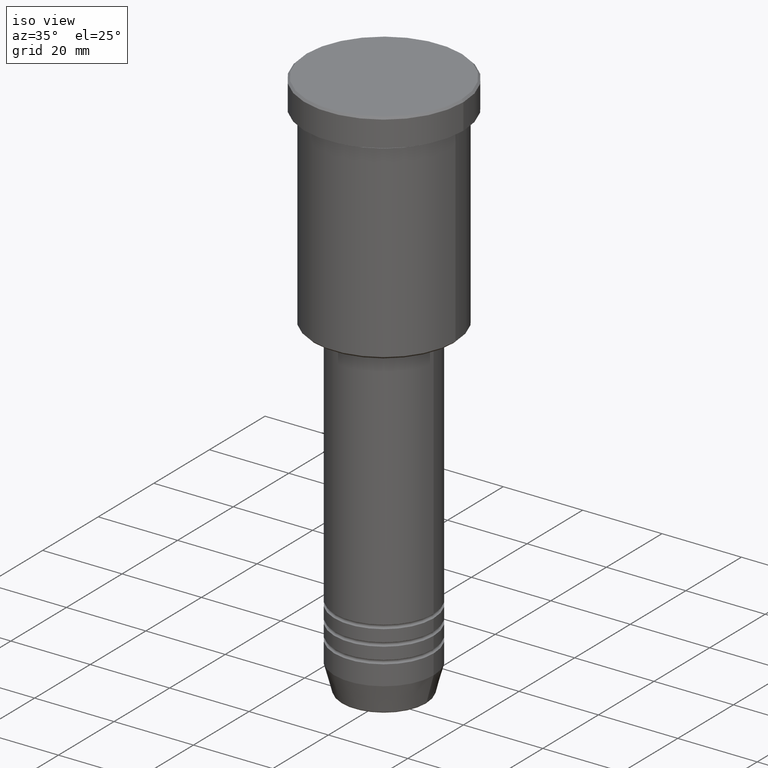
[diagram: clean part render]
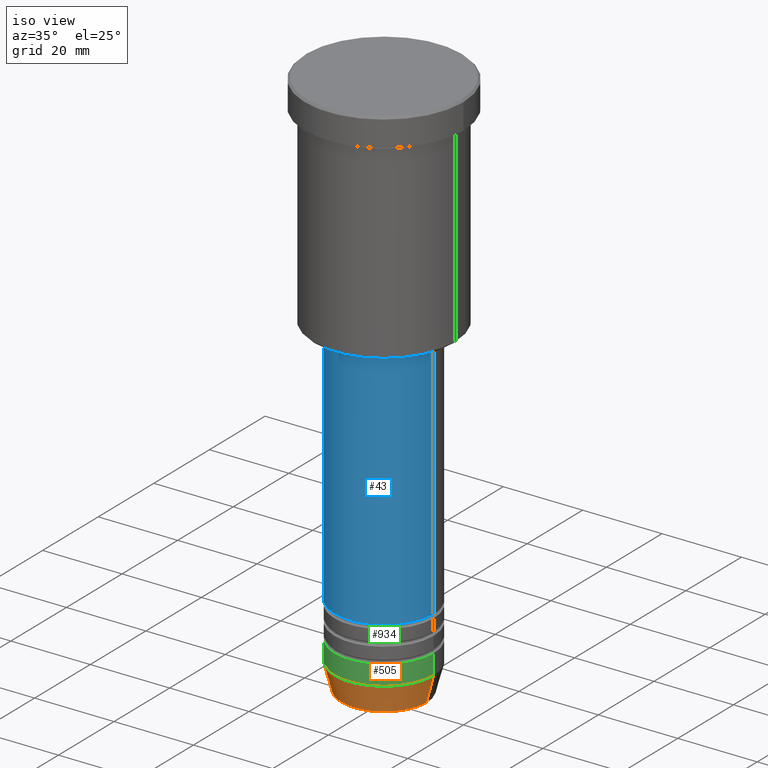
[diagram: same view with three faces highlighted in distinct colors, each labeled with its STEP entity id]
A machine part, iso view with three faces highlighted in distinct colors.
Their STEP definitions:

[orange] entity #505 — the highlighted conical surface has half-angle 15 deg.
#2 = DIRECTION ( 'NONE',  ( -0.000000000000000000, -0.000000000000000000, 1.000000000000000000 ) ) ;
#21 = EDGE_CURVE ( 'NONE', #1040, #383, #338, .T. ) ;
#80 = AXIS2_PLACEMENT_3D ( 'NONE', #639, #2, #745 ) ;
#99 = AXIS2_PLACEMENT_3D ( 'NONE', #422, #1058, #236 ) ;
#112 = LINE ( 'NONE', #425, #375 ) ;
#118 = CONICAL_SURFACE ( 'NONE', #435, 12.50000000000000000, 0.2617993877991500740 ) ;
#192 = EDGE_CURVE ( 'NONE', #383, #661, #434, .T. ) ;
#196 = CARTESIAN_POINT ( 'NONE',  ( -12.50000000000000000, 1.530808498934191521E-15, -133.0000000000000000 ) ) ;
#221 = DIRECTION ( 'NONE',  ( 0.2588190451025213501, 0.000000000000000000, 0.9659258262890680902 ) ) ;
#231 = FACE_OUTER_BOUND ( 'NONE', #728, .T. ) ;
#235 = VERTEX_POINT ( 'NONE', #1006 ) ;
#236 = DIRECTION ( 'NONE',  ( 1.000000000000000000, 0.000000000000000000, 0.000000000000000000 ) ) ;
#250 = CARTESIAN_POINT ( 'NONE',  ( -12.50000000000000000, 1.530808498934191521E-15, -133.0000000000000000 ) ) ;
#277 = ORIENTED_EDGE ( 'NONE', *, *, #192, .F. ) ;
#338 = LINE ( 'NONE', #250, #409 ) ;
#375 = VECTOR ( 'NONE', #221, 1000.000000000000000 ) ;
#383 = VERTEX_POINT ( 'NONE', #196 ) ;
#409 = VECTOR ( 'NONE', #1148, 1000.000000000000000 ) ;
#418 = ORIENTED_EDGE ( 'NONE', *, *, #557, .T. ) ;
#422 = CARTESIAN_POINT ( 'NONE',  ( 0.000000000000000000, 0.000000000000000000, -139.6294095225512990 ) ) ;
#425 = CARTESIAN_POINT ( 'NONE',  ( 12.50000000000000000, 0.000000000000000000, -133.0000000000000000 ) ) ;
#434 = CIRCLE ( 'NONE', #80, 12.50000000000000000 ) ;
#435 = AXIS2_PLACEMENT_3D ( 'NONE', #977, #594, #443 ) ;
#443 = DIRECTION ( 'NONE',  ( 1.000000000000000000, 0.000000000000000000, 0.000000000000000000 ) ) ;
#468 = CARTESIAN_POINT ( 'NONE',  ( 12.50000000000000000, 0.000000000000000000, -133.0000000000000000 ) ) ;
#505 = ADVANCED_FACE ( 'NONE', ( #231 ), #118, .T. ) ;
#557 = EDGE_CURVE ( 'NONE', #1040, #235, #598, .T. ) ;
#594 = DIRECTION ( 'NONE',  ( -0.000000000000000000, -0.000000000000000000, 1.000000000000000000 ) ) ;
#598 = CIRCLE ( 'NONE', #99, 10.72365507213718416 ) ;
#639 = CARTESIAN_POINT ( 'NONE',  ( 0.000000000000000000, 0.000000000000000000, -133.0000000000000000 ) ) ;
#661 = VERTEX_POINT ( 'NONE', #468 ) ;
#728 = EDGE_LOOP ( 'NONE', ( #1140, #418, #1122, #277 ) ) ;
#745 = DIRECTION ( 'NONE',  ( 1.000000000000000000, 0.000000000000000000, 0.000000000000000000 ) ) ;
#977 = CARTESIAN_POINT ( 'NONE',  ( 0.000000000000000000, 0.000000000000000000, -133.0000000000000000 ) ) ;
#984 = CARTESIAN_POINT ( 'NONE',  ( -10.72365507213718416, 1.422038742429750121E-15, -139.6294095225512990 ) ) ;
#1006 = CARTESIAN_POINT ( 'NONE',  ( 10.72365507213718416, 0.000000000000000000, -139.6294095225512990 ) ) ;
#1040 = VERTEX_POINT ( 'NONE', #984 ) ;
#1058 = DIRECTION ( 'NONE',  ( -0.000000000000000000, -0.000000000000000000, 1.000000000000000000 ) ) ;
#1106 = EDGE_CURVE ( 'NONE', #235, #661, #112, .T. ) ;
#1122 = ORIENTED_EDGE ( 'NONE', *, *, #1106, .T. ) ;
#1140 = ORIENTED_EDGE ( 'NONE', *, *, #21, .F. ) ;
#1148 = DIRECTION ( 'NONE',  ( -0.2588190451025213501, 3.169619151431772337E-17, 0.9659258262890680902 ) ) ;

[blue] entity #43 — the highlighted cylindrical surface (partial cylindrical patch) has radius 12.5 mm, axis along (-0, -0, 1).
#43 = ADVANCED_FACE ( 'NONE', ( #232 ), #444, .T. ) ;
#66 = EDGE_CURVE ( 'NONE', #843, #251, #190, .T. ) ;
#67 = CARTESIAN_POINT ( 'NONE',  ( 12.50000000000000000, 0.000000000000000000, 0.000000000000000000 ) ) ;
#151 = DIRECTION ( 'NONE',  ( -0.000000000000000000, -0.000000000000000000, 1.000000000000000000 ) ) ;
#190 = CIRCLE ( 'NONE', #871, 12.50000000000000000 ) ;
#206 = VERTEX_POINT ( 'NONE', #545 ) ;
#225 = DIRECTION ( 'NONE',  ( -0.000000000000000000, -0.000000000000000000, 1.000000000000000000 ) ) ;
#232 = FACE_OUTER_BOUND ( 'NONE', #938, .T. ) ;
#245 = DIRECTION ( 'NONE',  ( -0.000000000000000000, -0.000000000000000000, 1.000000000000000000 ) ) ;
#251 = VERTEX_POINT ( 'NONE', #911 ) ;
#361 = EDGE_CURVE ( 'NONE', #665, #843, #750, .T. ) ;
#420 = LINE ( 'NONE', #67, #455 ) ;
#441 = DIRECTION ( 'NONE',  ( -0.000000000000000000, -0.000000000000000000, 1.000000000000000000 ) ) ;
#444 = CYLINDRICAL_SURFACE ( 'NONE', #716, 12.50000000000000000 ) ;
#445 = ORIENTED_EDGE ( 'NONE', *, *, #1102, .T. ) ;
#455 = VECTOR ( 'NONE', #441, 1000.000000000000000 ) ;
#457 = CIRCLE ( 'NONE', #683, 12.50000000000000000 ) ;
#545 = CARTESIAN_POINT ( 'NONE',  ( 12.50000000000000000, 0.000000000000000000, -119.0000000000000000 ) ) ;
#664 = DIRECTION ( 'NONE',  ( -0.000000000000000000, -0.000000000000000000, 1.000000000000000000 ) ) ;
#665 = VERTEX_POINT ( 'NONE', #744 ) ;
#683 = AXIS2_PLACEMENT_3D ( 'NONE', #859, #664, #776 ) ;
#697 = CARTESIAN_POINT ( 'NONE',  ( 0.000000000000000000, 0.000000000000000000, 0.000000000000000000 ) ) ;
#716 = AXIS2_PLACEMENT_3D ( 'NONE', #697, #245, #793 ) ;
#744 = CARTESIAN_POINT ( 'NONE',  ( -12.50000000000000000, 1.530808498934191521E-15, -119.0000000000000000 ) ) ;
#750 = LINE ( 'NONE', #1119, #1133 ) ;
#776 = DIRECTION ( 'NONE',  ( 1.000000000000000000, 0.000000000000000000, 0.000000000000000000 ) ) ;
#793 = DIRECTION ( 'NONE',  ( 1.000000000000000000, 0.000000000000000000, 0.000000000000000000 ) ) ;
#843 = VERTEX_POINT ( 'NONE', #1064 ) ;
#859 = CARTESIAN_POINT ( 'NONE',  ( 0.000000000000000000, 0.000000000000000000, -119.0000000000000000 ) ) ;
#871 = AXIS2_PLACEMENT_3D ( 'NONE', #978, #151, #892 ) ;
#892 = DIRECTION ( 'NONE',  ( 1.000000000000000000, 0.000000000000000000, 0.000000000000000000 ) ) ;
#911 = CARTESIAN_POINT ( 'NONE',  ( 12.50000000000000000, 0.000000000000000000, -57.00000000000002842 ) ) ;
#919 = EDGE_CURVE ( 'NONE', #206, #251, #420, .T. ) ;
#938 = EDGE_LOOP ( 'NONE', ( #952, #445, #976, #1018 ) ) ;
#952 = ORIENTED_EDGE ( 'NONE', *, *, #361, .F. ) ;
#976 = ORIENTED_EDGE ( 'NONE', *, *, #919, .T. ) ;
#978 = CARTESIAN_POINT ( 'NONE',  ( 0.000000000000000000, 0.000000000000000000, -57.00000000000002842 ) ) ;
#1018 = ORIENTED_EDGE ( 'NONE', *, *, #66, .F. ) ;
#1064 = CARTESIAN_POINT ( 'NONE',  ( -12.50000000000000000, 1.530808498934191521E-15, -57.00000000000002842 ) ) ;
#1102 = EDGE_CURVE ( 'NONE', #665, #206, #457, .T. ) ;
#1119 = CARTESIAN_POINT ( 'NONE',  ( -12.50000000000000000, 1.530808498934191521E-15, 0.000000000000000000 ) ) ;
#1133 = VECTOR ( 'NONE', #225, 1000.000000000000000 ) ;

[green] entity #934 — the highlighted cylindrical surface (partial cylindrical patch) has radius 12.5 mm, axis along (-0, -0, 1).
#2 = DIRECTION ( 'NONE',  ( -0.000000000000000000, -0.000000000000000000, 1.000000000000000000 ) ) ;
#34 = EDGE_CURVE ( 'NONE', #383, #109, #1072, .T. ) ;
#54 = CARTESIAN_POINT ( 'NONE',  ( 0.000000000000000000, 0.000000000000000000, -128.0000000000000000 ) ) ;
#80 = AXIS2_PLACEMENT_3D ( 'NONE', #639, #2, #745 ) ;
#109 = VERTEX_POINT ( 'NONE', #341 ) ;
#121 = EDGE_LOOP ( 'NONE', ( #314, #300, #543, #622 ) ) ;
#177 = VECTOR ( 'NONE', #731, 1000.000000000000000 ) ;
#192 = EDGE_CURVE ( 'NONE', #383, #661, #434, .T. ) ;
#196 = CARTESIAN_POINT ( 'NONE',  ( -12.50000000000000000, 1.530808498934191521E-15, -133.0000000000000000 ) ) ;
#300 = ORIENTED_EDGE ( 'NONE', *, *, #192, .T. ) ;
#311 = CARTESIAN_POINT ( 'NONE',  ( 12.50000000000000000, 0.000000000000000000, -128.0000000000000000 ) ) ;
#314 = ORIENTED_EDGE ( 'NONE', *, *, #34, .F. ) ;
#341 = CARTESIAN_POINT ( 'NONE',  ( -12.50000000000000000, 1.530808498934191521E-15, -128.0000000000000000 ) ) ;
#343 = FACE_OUTER_BOUND ( 'NONE', #121, .T. ) ;
#364 = CARTESIAN_POINT ( 'NONE',  ( 12.50000000000000000, 0.000000000000000000, 0.000000000000000000 ) ) ;
#383 = VERTEX_POINT ( 'NONE', #196 ) ;
#434 = CIRCLE ( 'NONE', #80, 12.50000000000000000 ) ;
#468 = CARTESIAN_POINT ( 'NONE',  ( 12.50000000000000000, 0.000000000000000000, -133.0000000000000000 ) ) ;
#515 = AXIS2_PLACEMENT_3D ( 'NONE', #54, #522, #796 ) ;
#522 = DIRECTION ( 'NONE',  ( -0.000000000000000000, -0.000000000000000000, 1.000000000000000000 ) ) ;
#534 = LINE ( 'NONE', #364, #177 ) ;
#543 = ORIENTED_EDGE ( 'NONE', *, *, #1054, .T. ) ;
#611 = DIRECTION ( 'NONE',  ( -0.000000000000000000, -0.000000000000000000, 1.000000000000000000 ) ) ;
#622 = ORIENTED_EDGE ( 'NONE', *, *, #858, .F. ) ;
#639 = CARTESIAN_POINT ( 'NONE',  ( 0.000000000000000000, 0.000000000000000000, -133.0000000000000000 ) ) ;
#659 = CIRCLE ( 'NONE', #515, 12.50000000000000000 ) ;
#661 = VERTEX_POINT ( 'NONE', #468 ) ;
#693 = DIRECTION ( 'NONE',  ( -0.000000000000000000, -0.000000000000000000, 1.000000000000000000 ) ) ;
#705 = CARTESIAN_POINT ( 'NONE',  ( -12.50000000000000000, 1.530808498934191521E-15, 0.000000000000000000 ) ) ;
#711 = CARTESIAN_POINT ( 'NONE',  ( 0.000000000000000000, 0.000000000000000000, 0.000000000000000000 ) ) ;
#726 = VERTEX_POINT ( 'NONE', #311 ) ;
#731 = DIRECTION ( 'NONE',  ( -0.000000000000000000, -0.000000000000000000, 1.000000000000000000 ) ) ;
#745 = DIRECTION ( 'NONE',  ( 1.000000000000000000, 0.000000000000000000, 0.000000000000000000 ) ) ;
#785 = CYLINDRICAL_SURFACE ( 'NONE', #837, 12.50000000000000000 ) ;
#796 = DIRECTION ( 'NONE',  ( 1.000000000000000000, 0.000000000000000000, 0.000000000000000000 ) ) ;
#837 = AXIS2_PLACEMENT_3D ( 'NONE', #711, #693, #1051 ) ;
#858 = EDGE_CURVE ( 'NONE', #109, #726, #659, .T. ) ;
#934 = ADVANCED_FACE ( 'NONE', ( #343 ), #785, .T. ) ;
#1051 = DIRECTION ( 'NONE',  ( 1.000000000000000000, 0.000000000000000000, 0.000000000000000000 ) ) ;
#1054 = EDGE_CURVE ( 'NONE', #661, #726, #534, .T. ) ;
#1072 = LINE ( 'NONE', #705, #1077 ) ;
#1077 = VECTOR ( 'NONE', #611, 1000.000000000000000 ) ;